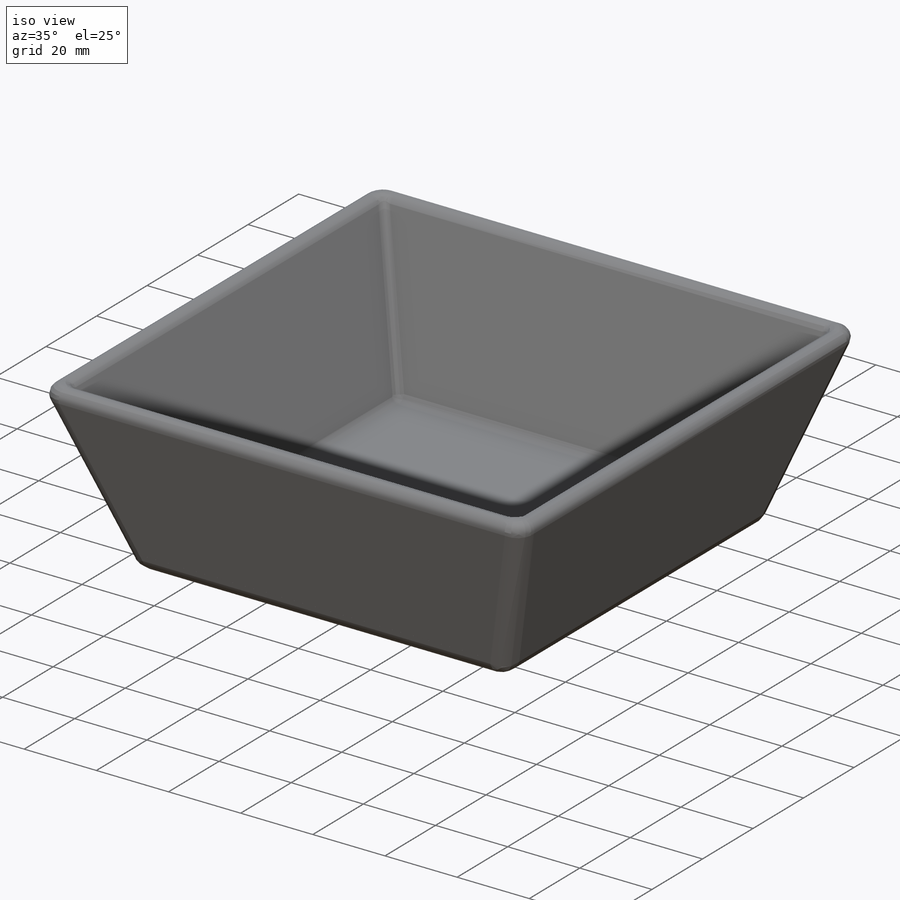
[diagram: iso view]
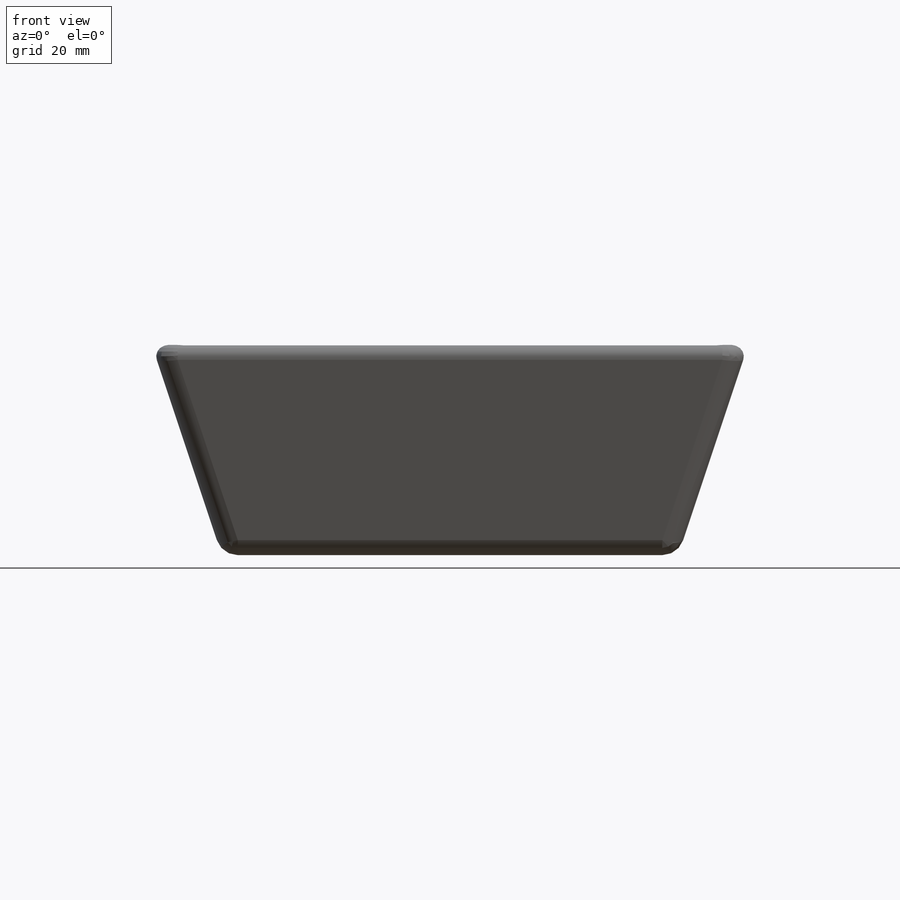
[diagram: front view]
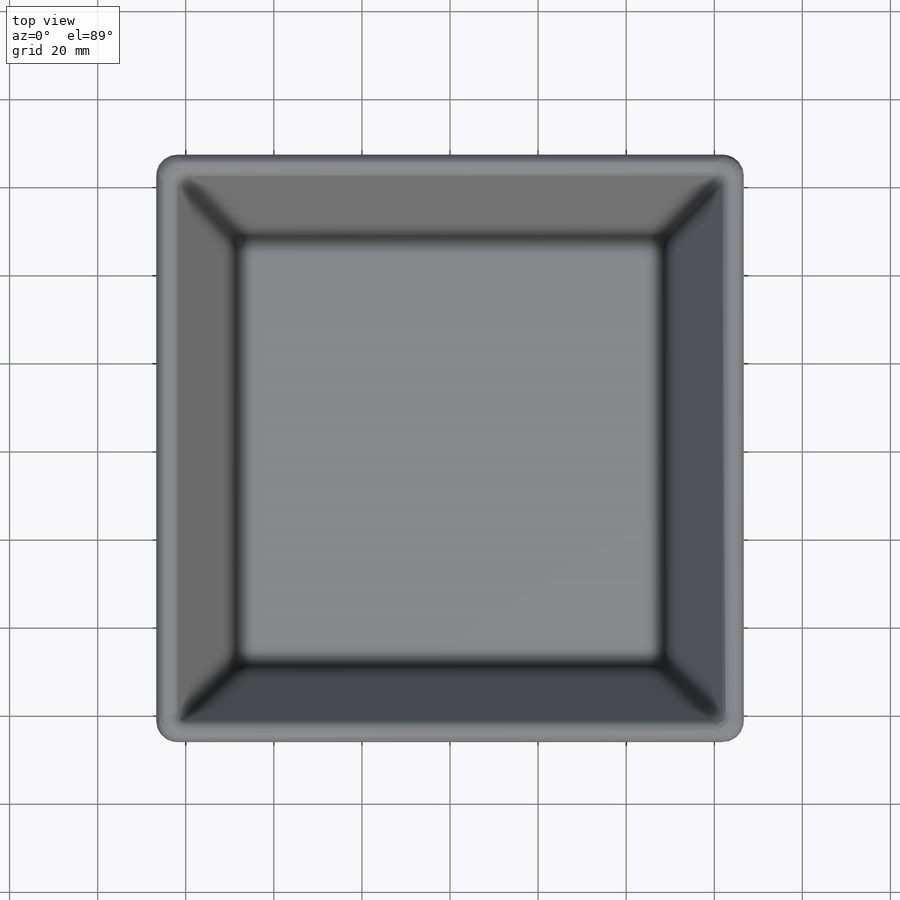
[diagram: top view]
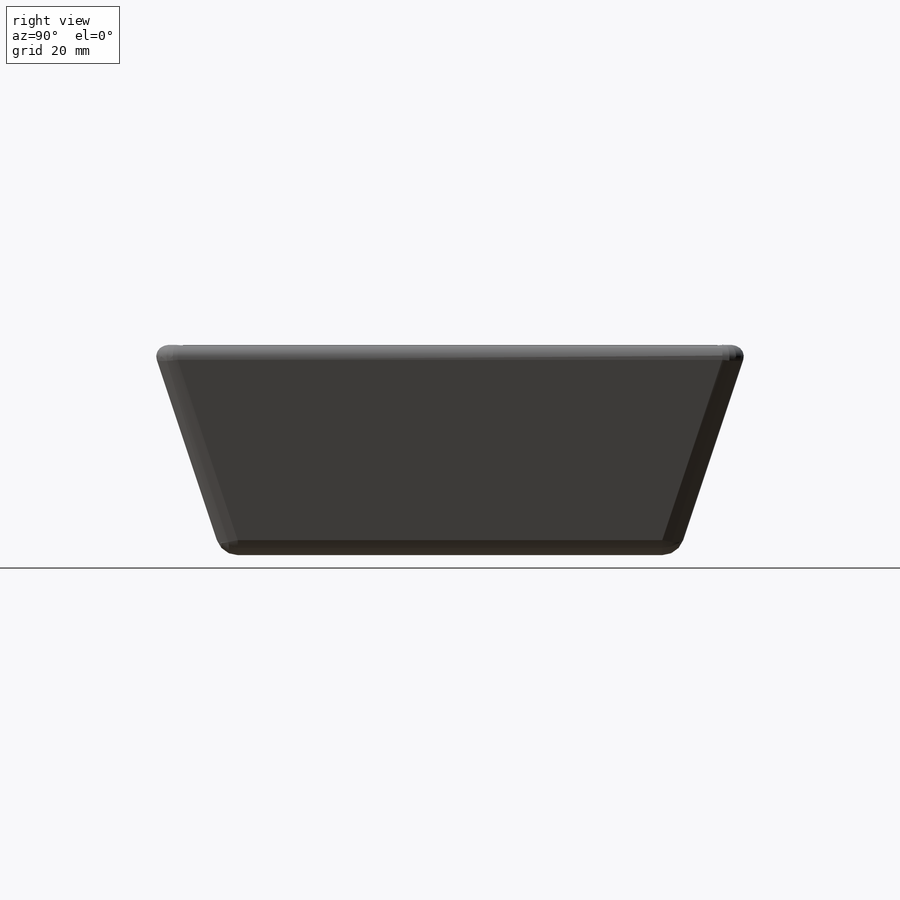
[diagram: right view]
SOLIDWORKS PART (.sldprt)
format: sldprt  version: not decoded by parser v0  size: 382,976 bytes
history: native  units: mm
features: mirror x5, fillet x4, plane x3, sketch x3, material x1, cut_extrude x1 (+11 scaffold rows collapsed)
feature tree (28):
  scaffold x11  (default folders/planes/origin — collapsed)
  material  "Keramisches Porzellan"
  plane  "Vorne"
  plane  "Oben"
  plane  "Rechts"
  sketch  "Skizze6"  dims[c1.D1=50.0mm c1.D2=50.0mm c2.D1=65.0mm c2.D2=45.0mm c2.D3=50.0mm c3.D1=140.0mm c3.D5=5.0mm c3.D6=1.0mm c3.D7=2.5mm]
  mirror  "Spiegeln2"
  sketch  "Skizze7"  dims[c1.D1=50.0mm c1.D2=65.0mm c1.D3=45.0mm c2.D1=130.0mm c2.D5=5.0mm c2.D6=1.0mm c2.D7=2.5mm]
  mirror  "Spiegeln4"
  mirror  "Spiegeln5"
  mirror  "Spiegeln6"
  sketch  "Skizze8"
  cut_extrude  "Linear austragen1"  [1 undecoded]
  mirror  "Spiegeln7"
  fillet  "Verrundung1"  Radius=10mm
  fillet  "Verrundung2"  Radius=5mm
  fillet  "Verrundung3"  Radius=2mm
  fillet  "Verrundung4"  Radius=2.5mm
decode coverage: 6 of 13 modeling features carry decoded parameters
note: 1 parameter value undecoded
note: suppression state not decoded; provenance and decode notes live in map.json
